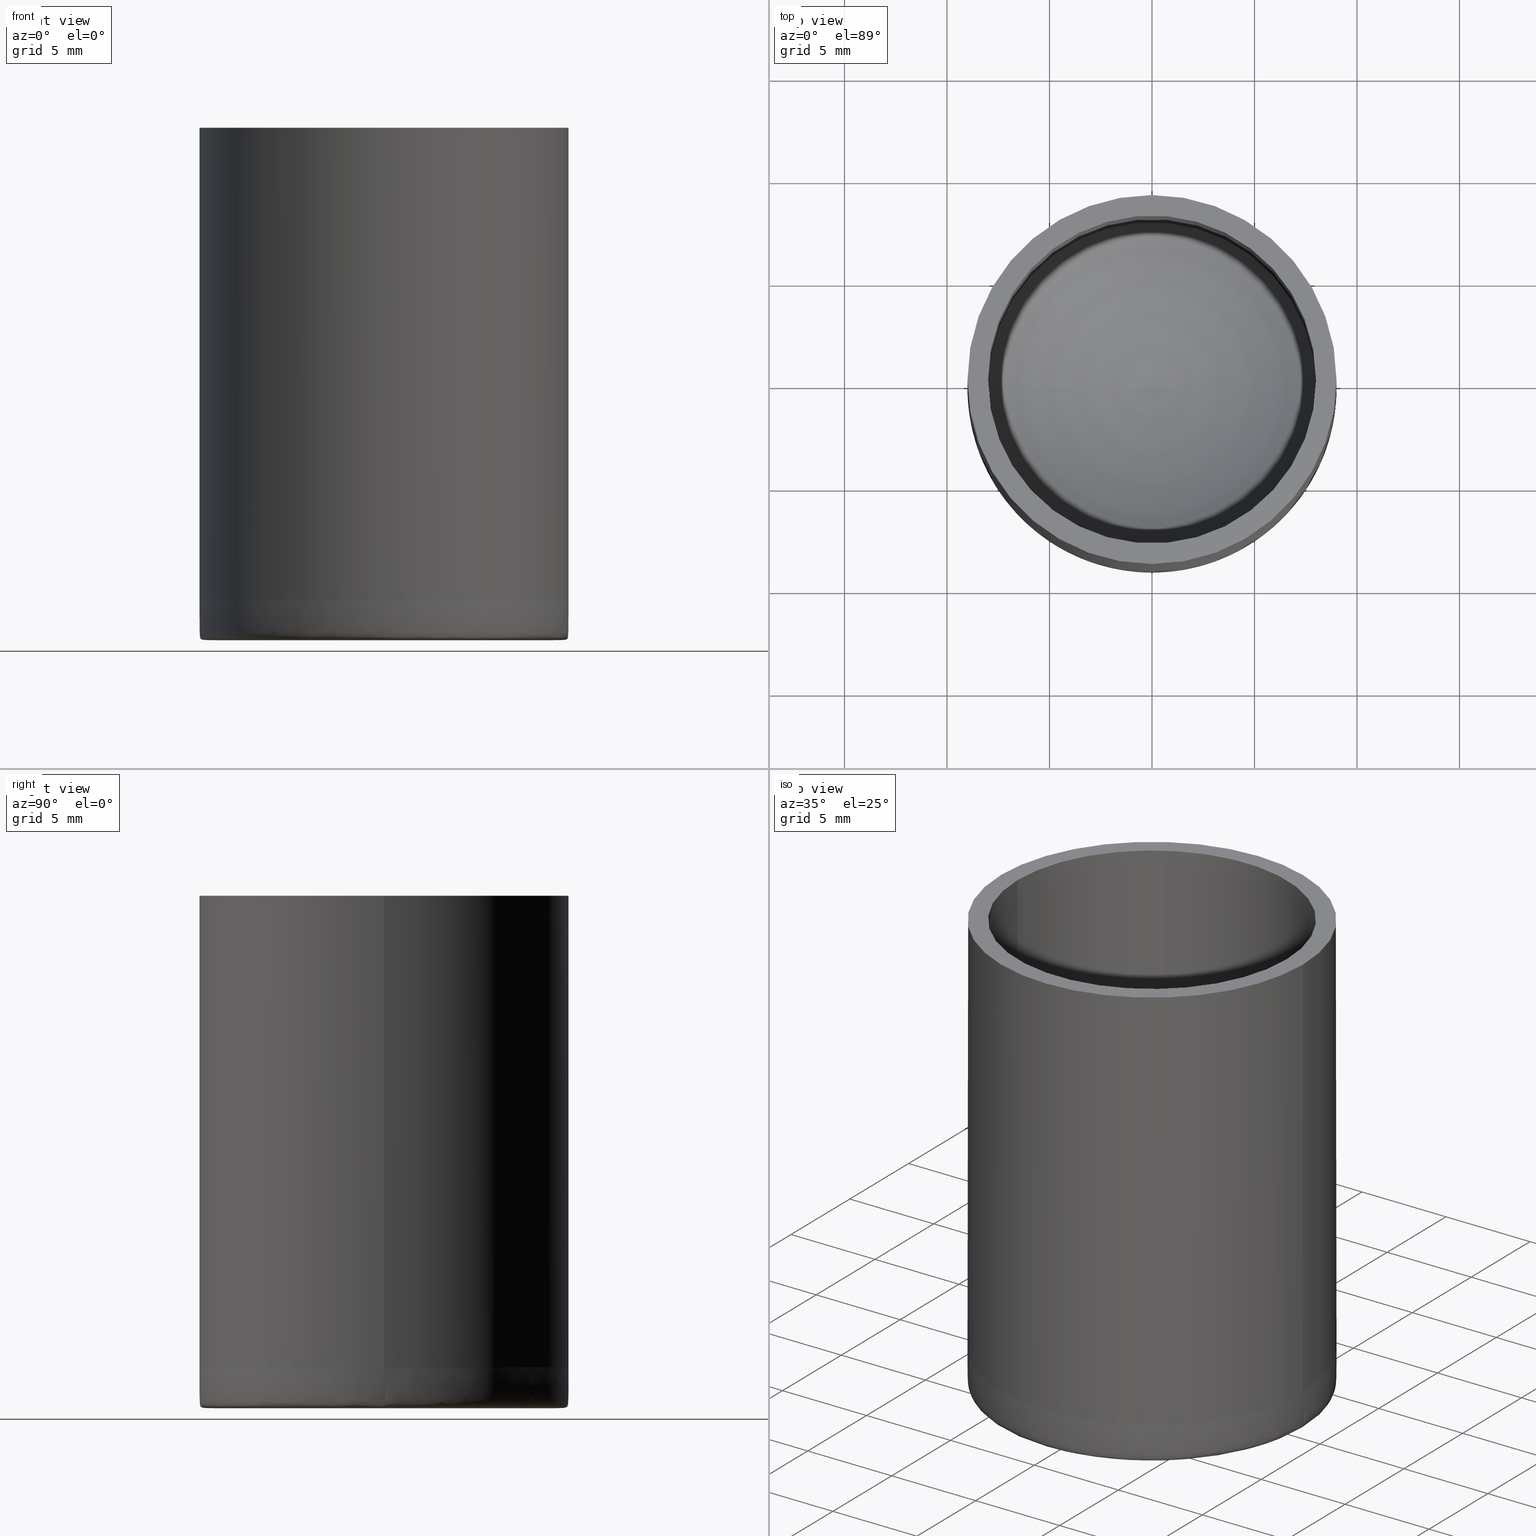
[diagram: canonical four-view strip — front | top / right | iso, engineering-drawing reading convention]
A machine part, canonical four-view strip (front | top / right | iso — engineering-drawing reading convention). The complete STEP part file that produces these views, byte-faithful:
ISO-10303-21;
HEADER;
FILE_DESCRIPTION (( 'STEP AP203' ),
    '1' );
FILE_NAME ('���. KRT631.STEP',
    '2014-06-04T09:23:57',
    ( '' ),
    ( '' ),
    'SwSTEP 2.0',
    'SolidWorks 2014',
    '' );
FILE_SCHEMA (( 'CONFIG_CONTROL_DESIGN' ));
ENDSEC;

DATA;
#1 = CARTESIAN_POINT ( 'NONE',  ( 2.355730962935730600, 8.765754088481333600, 2.000000000000001800 ) ) ;
#2 = CARTESIAN_POINT ( 'NONE',  ( 8.765754088481321200, 2.355730962935762600, 2.000000000000001800 ) ) ;
#3 =( BOUNDED_SURFACE ( )  B_SPLINE_SURFACE ( 2, 3, ( 
 ( #583, #352, #393, #348, #116, #298, #19, #390, #21, #65, #445, #110, #69, #157, #300, #114, #438, #160, #15, #444, #496, #258, #208, #163, #164, #500, #343, #543, #256, #18, #63, #387, #351, #587 ),
 ( #112, #106, #119, #592, #307, #216, #593, #551, #512, #76, #261, #602, #505, #361, #554, #212, #118, #596, #266, #506, #447, #508, #259, #260, #224, #452, #175, #404, #513, #454, #23, #314, #401, #356 ),
 ( #32, #125, #74, #221, #357, #264, #304, #30, #168, #395, #213, #22, #450, #127, #170, #552, #394, #459, #78, #594, #311, #399, #359, #308, #355, #26, #75, #72, #171, #117, #166, #555, #515, #134 ) ),
 .UNSPECIFIED., .F., .T., .T. ) 
 B_SPLINE_SURFACE_WITH_KNOTS ( ( 3, 3 ),
 ( 4, 2, 2, 2, 2, 2, 2, 2, 2, 2, 2, 2, 2, 2, 2, 2, 4 ),
 ( 0.0000000000000000000, 1.000000000000000000 ),
 ( 0.0000000000000000000, 0.3926990816987241400, 0.7853981633974482800, 1.178097245096172400, 1.570796326794896600, 1.963495408493620700, 2.356194490192344800, 2.748893571891069000, 3.141592653589793100, 3.534291735288517300, 3.926990816987241400, 4.319689898685965100, 4.712388980384689700, 5.105088062083414300, 5.497787143782138000, 5.890486225480861600, 6.283185307179586200 ),
 .UNSPECIFIED. ) 
 GEOMETRIC_REPRESENTATION_ITEM ( )  RATIONAL_B_SPLINE_SURFACE ( (
 ( 1.000000000000000000, 1.000000000000000000, 1.000000000000000000, 1.000000000000000000, 1.000000000000000000, 1.000000000000000000, 1.000000000000000000, 1.000000000000000000, 1.000000000000000000, 1.000000000000000000, 1.000000000000000000, 1.000000000000000000, 1.000000000000000000, 1.000000000000000000, 1.000000000000000000, 1.000000000000000000, 1.000000000000000000, 1.000000000000000000, 1.000000000000000000, 1.000000000000000000, 1.000000000000000000, 1.000000000000000000, 1.000000000000000000, 1.000000000000000000, 1.000000000000000000, 1.000000000000000000, 1.000000000000000000, 1.000000000000000000, 1.000000000000000000, 1.000000000000000000, 1.000000000000000000, 1.000000000000000000, 1.000000000000000000, 1.000000000000000000),
 ( 14.14213562373095100, 14.14213562373095100, 14.14213562373095500, 14.14213562373095500, 14.14213562373095100, 14.14213562373095100, 14.14213562373095500, 14.14213562373095500, 14.14213562373095100, 14.14213562373095100, 14.14213562373094900, 14.14213562373094900, 14.14213562373095500, 14.14213562373095500, 14.14213562373094900, 14.14213562373094900, 14.14213562373095100, 14.14213562373095100, 14.14213562373094600, 14.14213562373094600, 14.14213562373095100, 14.14213562373095100, 14.14213562373094900, 14.14213562373094900, 14.14213562373095500, 14.14213562373095500, 14.14213562373095100, 14.14213562373095100, 14.14213562373095500, 14.14213562373095500, 14.14213562373094900, 14.14213562373094900, 14.14213562373095100, 14.14213562373095100),
 ( 1.000000000000000000, 1.000000000000000000, 1.000000000000000000, 1.000000000000000000, 1.000000000000000000, 1.000000000000000000, 1.000000000000000000, 1.000000000000000000, 1.000000000000000000, 1.000000000000000000, 1.000000000000000000, 1.000000000000000000, 1.000000000000000000, 1.000000000000000000, 1.000000000000000000, 1.000000000000000000, 1.000000000000000000, 1.000000000000000000, 1.000000000000000000, 1.000000000000000000, 1.000000000000000000, 1.000000000000000000, 1.000000000000000000, 1.000000000000000000, 1.000000000000000000, 1.000000000000000000, 1.000000000000000000, 1.000000000000000000, 1.000000000000000000, 1.000000000000000000, 1.000000000000000000, 1.000000000000000000, 1.000000000000000000, 1.000000000000000000) ) ) 
 REPRESENTATION_ITEM ( '' )  SURFACE ( )  );
#4 = DIRECTION ( 'NONE',  ( 1.478392893678685000E-017, -0.0000000000000000000, -1.000000000000000000 ) ) ;
#5 = DATE_AND_TIME ( #133, #396 ) ;
#6 = CARTESIAN_POINT ( 'NONE',  ( 4.532570819635861200, -7.864077496722286400, -3.956461275332821500E-013 ) ) ;
#7 = FACE_OUTER_BOUND ( 'NONE', #546, .T. ) ;
#8 = AXIS2_PLACEMENT_3D ( 'NONE', #466, #321, #520 ) ;
#9 = CARTESIAN_POINT ( 'NONE',  ( -2.355730962935641800, 8.765754088481578800, 1.734723475976807300E-015 ) ) ;
#10 = CARTESIAN_POINT ( 'NONE',  ( 1.084202172485504400E-016, 0.0000000000000000000, 16.82171155320563800 ) ) ;
#11 = CARTESIAN_POINT ( 'NONE',  ( 7.864077496721888500, -4.532570819635727100, 2.000000000000001800 ) ) ;
#12 = CARTESIAN_POINT ( 'NONE',  ( 7.864077495188316100, 4.532570823338097900, 2.000000000000001800 ) ) ;
#13 = CARTESIAN_POINT ( 'NONE',  ( -0.9162978541803630300, 6.999999999999999100, 1.734723475976807100E-015 ) ) ;
#14 = EDGE_LOOP ( 'NONE', ( #491, #141 ) ) ;
#15 = CARTESIAN_POINT ( 'NONE',  ( -8.765754088481543200, -2.355730962935216300, 2.000000000000001800 ) ) ;
#16 = CARTESIAN_POINT ( 'NONE',  ( -3.525332859716778800, -6.116504719672661000, 1.734723475976807100E-015 ) ) ;
#17 =( NAMED_UNIT ( * ) PLANE_ANGLE_UNIT ( ) SI_UNIT ( $, .RADIAN. ) );
#18 = CARTESIAN_POINT ( 'NONE',  ( 7.197001578750059600, -5.530920482607799100, 2.000000000000001800 ) ) ;
#19 = CARTESIAN_POINT ( 'NONE',  ( 4.532570819635877200, 7.864077496721830800, 2.000000000000001800 ) ) ;
#20 = ORIENTED_EDGE ( 'NONE', *, *, #24, .T. ) ;
#21 = CARTESIAN_POINT ( 'NONE',  ( 1.178097241089039600, 9.000000000000000000, 2.000000000000001800 ) ) ;
#22 = CARTESIAN_POINT ( 'NONE',  ( -3.525332859716895600, 6.116504719672516200, 1.734723475976807100E-015 ) ) ;
#23 = CARTESIAN_POINT ( 'NONE',  ( 7.864077496722276600, -4.532570819635886900, 1.734723475976807300E-015 ) ) ;
#24 = EDGE_CURVE ( 'NONE', #503, #476, #440, .T. ) ;
#25 = FACE_OUTER_BOUND ( 'NONE', #262, .T. ) ;
#26 = CARTESIAN_POINT ( 'NONE',  ( 0.9162978541803755700, -6.999999999999999100, 1.734723475976807100E-015 ) ) ;
#27 = ORIENTED_EDGE ( 'NONE', *, *, #553, .F. ) ;
#28 = CARTESIAN_POINT ( 'NONE',  ( 5.273456898050755000, 4.626093170442653800, -0.0000000000000000000 ) ) ;
#29 = EDGE_CURVE ( 'NONE', #332, #120, #582, .T. ) ;
#30 = CARTESIAN_POINT ( 'NONE',  ( 1.832235193394360100, 6.817808735485497700, 1.734723475976807100E-015 ) ) ;
#31 = CARTESIAN_POINT ( 'NONE',  ( 7.000000000000000900, 0.4583463344911470900, -0.0000000000000000000 ) ) ;
#32 = CARTESIAN_POINT ( 'NONE',  ( 6.999999999999999100, 0.0000000000000000000, 1.734723475976807100E-015 ) ) ;
#33 = DIRECTION ( 'NONE',  ( 1.000000000000000000, 0.0000000000000000000, -0.0000000000000000000 ) ) ;
#34 = DIRECTION ( 'NONE',  ( 1.000000000000000000, 0.0000000000000000000, -0.0000000000000000000 ) ) ;
#35 = TOROIDAL_SURFACE ( 'NONE', #362, -0.6206418324521124600, 13.83563900021273500 ) ;
#36 = CARTESIAN_POINT ( 'NONE',  ( -9.000000000000000000, 1.103971260012029000E-015, 1.734723475976807300E-015 ) ) ;
#37 = CARTESIAN_POINT ( 'NONE',  ( 6.954909725996230900, -0.9137101841437300600, 0.0000000000000000000 ) ) ;
#38 = CARTESIAN_POINT ( 'NONE',  ( 6.955024288918110600, 0.9135289665447016100, -0.0000000000000000000 ) ) ;
#39 = AXIS2_PLACEMENT_3D ( 'NONE', #66, #111, #162 ) ;
#40 = CARTESIAN_POINT ( 'NONE',  ( -6.999999999999999100, 8.673617379884035500E-016, 8.673617379884035500E-016 ) ) ;
#41 = CARTESIAN_POINT ( 'NONE',  ( 4.626093170439671300, -5.273456898053740200, -0.0000000000000000000 ) ) ;
#42 = CARTESIAN_POINT ( 'NONE',  ( 3.230422529338457500E-016, 0.0000000000000000000, 6.000000000000003600 ) ) ;
#43 = MANIFOLD_SOLID_BREP ( '����������1', #276 ) ;
#44 = CARTESIAN_POINT ( 'NONE',  ( 1.178097241089039600, 9.000000000000000000, 2.000000000000001800 ) ) ;
#45 = CARTESIAN_POINT ( 'NONE',  ( 3.230422529338457500E-016, 0.0000000000000000000, 6.000000000000003600 ) ) ;
#46 = PERSON_AND_ORGANIZATION ( #516, #556 ) ;
#47 = EDGE_LOOP ( 'NONE', ( #305, #206, #569, #600 ) ) ;
#48 = CARTESIAN_POINT ( 'NONE',  ( 9.000000000000000000, 0.0000000000000000000, 1.734723475976807300E-015 ) ) ;
#49 = AXIS2_PLACEMENT_3D ( 'NONE', #318, #174, #33 ) ;
#50 = CARTESIAN_POINT ( 'NONE',  ( 5.530920479774233700, 7.197001581583620600, 2.000000000000001800 ) ) ;
#51 = CARTESIAN_POINT ( 'NONE',  ( -6.291945348562289400, -3.101679843626973000, 0.0000000000000000000 ) ) ;
#52 = FACE_OUTER_BOUND ( 'NONE', #329, .T. ) ;
#53 = ADVANCED_FACE ( 'NONE', ( #517 ), #449, .T. ) ;
#54 = DIRECTION ( 'NONE',  ( -1.000000000000000000, 0.0000000000000000000, 0.0000000000000000000 ) ) ;
#55 = ORIENTED_EDGE ( 'NONE', *, *, #436, .F. ) ;
#56 = CARTESIAN_POINT ( 'NONE',  ( 5.530920482607561100, -7.197001578749894400, 1.734723475976806900E-015 ) ) ;
#57 = CARTESIAN_POINT ( 'NONE',  ( 6.999999999999999100, 0.0000000000000000000, 8.673617379884035500E-016 ) ) ;
#58 = CARTESIAN_POINT ( 'NONE',  ( 1.178097241089039600, 8.999999999999998200, 1.734723475976807300E-015 ) ) ;
#59 = DIRECTION ( 'NONE',  ( -0.0000000000000000000, -1.000000000000000000, 0.0000000000000000000 ) ) ;
#60 = CARTESIAN_POINT ( 'NONE',  ( -7.864077496720089000, -4.532570819636464200, -3.956461275345179200E-013 ) ) ;
#61 = AXIS2_PLACEMENT_3D ( 'NONE', #369, #472, #86 ) ;
#62 = APPROVAL_ROLE ( '' ) ;
#63 = CARTESIAN_POINT ( 'NONE',  ( 7.864077496721888500, -4.532570819635727100, 2.000000000000001800 ) ) ;
#64 = PERSON_AND_ORGANIZATION_ROLE ( 'design_supplier' ) ;
#65 = CARTESIAN_POINT ( 'NONE',  ( -1.178097241089038200, 9.000000000000000000, 2.000000000000001800 ) ) ;
#66 = CARTESIAN_POINT ( 'NONE',  ( 0.0000000000000000000, 0.0000000000000000000, 0.0000000000000000000 ) ) ;
#67 = VERTEX_POINT ( 'NONE', #365 ) ;
#68 = DATE_AND_TIME ( #189, #467 ) ;
#69 = CARTESIAN_POINT ( 'NONE',  ( -5.530920482607776900, 7.197001578750081000, 2.000000000000001800 ) ) ;
#70 = CARTESIAN_POINT ( 'NONE',  ( 6.817808735485742000, -1.832235193394495600, 1.734723475976807100E-015 ) ) ;
#71 = PRODUCT_DEFINITION ( 'UNKNOWN', '', #279, #281 ) ;
#72 = CARTESIAN_POINT ( 'NONE',  ( 3.525332859716758800, -6.116504719672669000, 1.734723475976807100E-015 ) ) ;
#73 = PERSON_AND_ORGANIZATION ( #516, #556 ) ;
#74 = CARTESIAN_POINT ( 'NONE',  ( 6.817808735485234800, 1.832235193394431600, 1.734723475976807100E-015 ) ) ;
#75 = CARTESIAN_POINT ( 'NONE',  ( 1.832235193394475200, -6.817808735485352000, 1.734723475976807100E-015 ) ) ;
#76 = CARTESIAN_POINT ( 'NONE',  ( -1.178097241089038200, 8.999999999999998200, 1.734723475976807300E-015 ) ) ;
#77 = APPROVAL_PERSON_ORGANIZATION ( #46, #99, #159 ) ;
#78 = CARTESIAN_POINT ( 'NONE',  ( -6.817808735485646900, -1.832235193394427900, 1.734723475976807100E-015 ) ) ;
#79 = ORIENTED_EDGE ( 'NONE', *, *, #473, .T. ) ;
#80 = CARTESIAN_POINT ( 'NONE',  ( -5.273401766169546300, 4.626038038560709600, 0.0000000000000000000 ) ) ;
#81 = CARTESIAN_POINT ( 'NONE',  ( 6.075836996854586200, -3.505686863512972500, 0.0000000000000000000 ) ) ;
#82 = CARTESIAN_POINT ( 'NONE',  ( 9.000000000000000000, 5.510910596163088600E-016, 2.000000000000001800 ) ) ;
#83 = DIRECTION ( 'NONE',  ( -1.000000000000000000, 0.0000000000000000000, 0.0000000000000000000 ) ) ;
#84 = DIRECTION ( 'NONE',  ( -1.000000000000000000, 0.0000000000000000000, -1.478392893678685000E-017 ) ) ;
#85 = DATE_AND_TIME ( #211, #286 ) ;
#86 = DIRECTION ( 'NONE',  ( -1.000000000000000000, 0.0000000000000000000, 0.0000000000000000000 ) ) ;
#87 = CARTESIAN_POINT ( 'NONE',  ( -9.000000000000000000, 1.178097241089039800, 2.000000000000001800 ) ) ;
#88 = CARTESIAN_POINT ( 'NONE',  ( -1.178097245096173100, -9.000000000000000000, 2.000000000000001800 ) ) ;
#89 = CARTESIAN_POINT ( 'NONE',  ( -7.197001578750478000, -5.530920482607379000, 2.000000000000001800 ) ) ;
#90 = CARTESIAN_POINT ( 'NONE',  ( -4.532570823338096100, -7.864077495188321400, 2.000000000000001800 ) ) ;
#91 = ORIENTED_EDGE ( 'NONE', *, *, #553, .T. ) ;
#92 = CARTESIAN_POINT ( 'NONE',  ( -8.999999999999998200, 1.178097245096171100, 2.000000000000001800 ) ) ;
#93 = ADVANCED_FACE ( 'NONE', ( #7 ), #3, .T. ) ;
#94 = CARTESIAN_POINT ( 'NONE',  ( 7.197001578749834000, 5.530920482608019400, 2.000000000000001800 ) ) ;
#95 = CARTESIAN_POINT ( 'NONE',  ( -1.832235193394365500, 6.817808735485495000, 1.734723475976807100E-015 ) ) ;
#96 = ADVANCED_FACE ( 'NONE', ( #270, #148 ), #227, .T. ) ;
#97 = CARTESIAN_POINT ( 'NONE',  ( 8.000000000000001800, 9.797174393178827600E-016, 6.000000000000003600 ) ) ;
#98 = CARTESIAN_POINT ( 'NONE',  ( 7.197001578750258600, -5.530920482607994500, 1.734723475976806900E-015 ) ) ;
#99 = APPROVAL ( #544, 'UNSPECIFIED' ) ;
#100 = DIRECTION ( 'NONE',  ( 1.478392893678685000E-017, -0.0000000000000000000, -1.000000000000000000 ) ) ;
#101 = LINE ( 'NONE', #470, #277 ) ;
#102 = CARTESIAN_POINT ( 'NONE',  ( 9.000000000000000000, 0.0000000000000000000, 2.000000000000001800 ) ) ;
#103 = DIRECTION ( 'NONE',  ( 0.0000000000000000000, 0.0000000000000000000, -1.000000000000000000 ) ) ;
#104 = CARTESIAN_POINT ( 'NONE',  ( 6.999999999999999100, 0.9162978541821159600, 1.734723475976807100E-015 ) ) ;
#105 = CARTESIAN_POINT ( 'NONE',  ( -1.178097241089025800, -9.000000000000001800, 2.000000000000001800 ) ) ;
#106 = CARTESIAN_POINT ( 'NONE',  ( 8.999999999999998200, 1.178097241091292000, 1.734723475976807300E-015 ) ) ;
#107 = CIRCLE ( 'NONE', #588, 8.000000000000000000 ) ;
#108 = EDGE_LOOP ( 'NONE', ( #55, #79, #191, #526 ) ) ;
#109 = DATE_TIME_ROLE ( 'creation_date' ) ;
#110 = CARTESIAN_POINT ( 'NONE',  ( -4.532570819636053000, 7.864077496721756200, 2.000000000000001800 ) ) ;
#111 = DIRECTION ( 'NONE',  ( 0.0000000000000000000, 0.0000000000000000000, 1.000000000000000000 ) ) ;
#112 = CARTESIAN_POINT ( 'NONE',  ( 8.999999999999998200, 0.0000000000000000000, 1.734723475976807300E-015 ) ) ;
#113 = PERSON_AND_ORGANIZATION_ROLE ( 'creator' ) ;
#114 = CARTESIAN_POINT ( 'NONE',  ( -8.765754088481420700, 2.355730962935523200, 2.000000000000001800 ) ) ;
#115 = EDGE_LOOP ( 'NONE', ( #347, #558 ) ) ;
#116 = CARTESIAN_POINT ( 'NONE',  ( 7.197001578749834000, 5.530920482608019400, 2.000000000000001800 ) ) ;
#117 = CARTESIAN_POINT ( 'NONE',  ( 5.597667894583356200, -4.301827042028308200, 1.734723475976807100E-015 ) ) ;
#118 = CARTESIAN_POINT ( 'NONE',  ( -8.999999999999998200, 1.178097241089039800, 1.734723475976807300E-015 ) ) ;
#119 = CARTESIAN_POINT ( 'NONE',  ( 8.765754088480962400, 2.355730962935613300, 1.734723475976806900E-015 ) ) ;
#120 = VERTEX_POINT ( 'NONE', #136 ) ;
#121 = APPROVAL_PERSON_ORGANIZATION ( #545, #165, #209 ) ;
#122 = VERTEX_POINT ( 'NONE', #82 ) ;
#123 = CARTESIAN_POINT ( 'NONE',  ( 6.075901012625232400, 3.505729637477756900, -0.0000000000000000000 ) ) ;
#124 = EDGE_CURVE ( 'NONE', #371, #455, #169, .T. ) ;
#125 = CARTESIAN_POINT ( 'NONE',  ( 6.999999999999999100, 0.9162978541821159600, 1.734723475976807100E-015 ) ) ;
#126 = DIRECTION ( 'NONE',  ( 1.000000000000000000, 0.0000000000000000000, 0.0000000000000000000 ) ) ;
#127 = CARTESIAN_POINT ( 'NONE',  ( -5.597667894583401500, 4.301827042028262900, 1.734723475976807100E-015 ) ) ;
#128 = CARTESIAN_POINT ( 'NONE',  ( 1.817370587955756200, -6.775160495766284500, 0.0000000000000000000 ) ) ;
#129 = CARTESIAN_POINT ( 'NONE',  ( 4.626038038560912100, 5.273401766169008900, 0.0000000000000000000 ) ) ;
#130 = CARTESIAN_POINT ( 'NONE',  ( -4.626093170442124400, 5.273456898050948600, -0.0000000000000000000 ) ) ;
#131 = CARTESIAN_POINT ( 'NONE',  ( 4.271773162550204900, -5.563954497036533600, 0.0000000000000000000 ) ) ;
#132 = CARTESIAN_POINT ( 'NONE',  ( -0.4577552816898854400, 6.999961015872925100, 0.0000000000000000000 ) ) ;
#133 = CALENDAR_DATE ( 2014, 4, 6 ) ;
#134 = CARTESIAN_POINT ( 'NONE',  ( 6.999999999999999100, 0.0000000000000000000, 1.734723475976807100E-015 ) ) ;
#135 = CARTESIAN_POINT ( 'NONE',  ( 6.642296073321877400, -2.255858372325521900, 0.0000000000000000000 ) ) ;
#136 = CARTESIAN_POINT ( 'NONE',  ( -6.999999999999999100, 8.673617379884035500E-016, 8.673617379884035500E-016 ) ) ;
#137 = CARTESIAN_POINT ( 'NONE',  ( 7.197001581583623200, -5.530920479774233700, 2.000000000000002200 ) ) ;
#138 = CARTESIAN_POINT ( 'NONE',  ( -8.765754088481543200, -2.355730962935216300, 2.000000000000001800 ) ) ;
#139 = EDGE_LOOP ( 'NONE', ( #354, #386, #590, #494 ) ) ;
#140 = CARTESIAN_POINT ( 'NONE',  ( 9.000000000000000000, -1.178097245096174200, 2.000000000000001800 ) ) ;
#141 = ORIENTED_EDGE ( 'NONE', *, *, #436, .T. ) ;
#142 = CARTESIAN_POINT ( 'NONE',  ( 4.532570819635877200, 7.864077496721830800, 2.000000000000001800 ) ) ;
#143 = AXIS2_PLACEMENT_3D ( 'NONE', #573, #4, #54 ) ;
#144 = CARTESIAN_POINT ( 'NONE',  ( -5.273456898050898900, -4.626093170442176800, -0.0000000000000000000 ) ) ;
#145 = CARTESIAN_POINT ( 'NONE',  ( -1.178097241089038200, 9.000000000000000000, 2.000000000000001800 ) ) ;
#146 = CARTESIAN_POINT ( 'NONE',  ( 2.355730959233521400, 8.765754090014837600, 2.000000000000001300 ) ) ;
#147 = CARTESIAN_POINT ( 'NONE',  ( 8.765754088480871800, -2.355730962935751900, 1.734723475976807300E-015 ) ) ;
#148 = FACE_BOUND ( 'NONE', #115, .T. ) ;
#149 = CARTESIAN_POINT ( 'NONE',  ( 6.817808735485234800, 1.832235193394431600, 1.734723475976807100E-015 ) ) ;
#150 = ADVANCED_FACE ( 'NONE', ( #398 ), #35, .F. ) ;
#151 = CC_DESIGN_PERSON_AND_ORGANIZATION_ASSIGNMENT ( #323, #113, ( #279 ) ) ;
#152 = CARTESIAN_POINT ( 'NONE',  ( 4.532570819635577800, 7.864077496722377000, 7.964964254957309400E-013 ) ) ;
#153 = CARTESIAN_POINT ( 'NONE',  ( 8.765754088481260800, -2.355730962935912200, 2.000000000000001800 ) ) ;
#154 = LOCAL_TIME ( 15, 23, 57.00000000000000000, #306 ) ;
#155 = CIRCLE ( 'NONE', #510, 9.000000000000000000 ) ;
#156 = CARTESIAN_POINT ( 'NONE',  ( -7.864077496721667300, 4.532570819636290200, 1.734723475976807300E-015 ) ) ;
#157 = CARTESIAN_POINT ( 'NONE',  ( -7.197001578750087200, 5.530920482607766300, 2.000000000000001800 ) ) ;
#158 = EDGE_CURVE ( 'NONE', #455, #120, #372, .T. ) ;
#159 = APPROVAL_ROLE ( '' ) ;
#160 = CARTESIAN_POINT ( 'NONE',  ( -9.000000000000000000, -1.178097241089037600, 2.000000000000001800 ) ) ;
#161 = VERTEX_POINT ( 'NONE', #407 ) ;
#162 = DIRECTION ( 'NONE',  ( 1.000000000000000000, 0.0000000000000000000, 0.0000000000000000000 ) ) ;
#163 = CARTESIAN_POINT ( 'NONE',  ( -2.355730962936081400, -8.765754088481189800, 2.000000000000001800 ) ) ;
#164 = CARTESIAN_POINT ( 'NONE',  ( -1.178097241089025800, -9.000000000000001800, 2.000000000000001800 ) ) ;
#165 = APPROVAL ( #497, 'UNSPECIFIED' ) ;
#166 = CARTESIAN_POINT ( 'NONE',  ( 6.116504719672263900, -3.525332859716779700, 1.734723475976807100E-015 ) ) ;
#167 = SHAPE_DEFINITION_REPRESENTATION ( #414, #353 ) ;
#168 = CARTESIAN_POINT ( 'NONE',  ( 0.9162978541803639100, 6.999999999999999100, 1.734723475976807100E-015 ) ) ;
#169 = LINE ( 'NONE', #273, #533 ) ;
#170 = CARTESIAN_POINT ( 'NONE',  ( -6.116504719672365200, 3.525332859717026100, 1.734723475976807100E-015 ) ) ;
#171 = CARTESIAN_POINT ( 'NONE',  ( 4.301827042028279800, -5.597667894583384700, 1.734723475976807100E-015 ) ) ;
#172 = EDGE_CURVE ( 'NONE', #120, #332, #288, .T. ) ;
#173 = CARTESIAN_POINT ( 'NONE',  ( 6.999999999999999100, 0.0000000000000000000, 8.673617379884035500E-016 ) ) ;
#174 = DIRECTION ( 'NONE',  ( 0.0000000000000000000, 0.0000000000000000000, 1.000000000000000000 ) ) ;
#175 = CARTESIAN_POINT ( 'NONE',  ( 2.355730962935725700, -8.765754088480882400, 3.991155744852366200E-013 ) ) ;
#176 = CARTESIAN_POINT ( 'NONE',  ( 0.4577552816897402200, -6.999961015872926900, 0.0000000000000000000 ) ) ;
#177 = ORIENTED_EDGE ( 'NONE', *, *, #416, .F. ) ;
#178 = B_SPLINE_CURVE_WITH_KNOTS ( 'NONE', 3,
 ( #615, #325, #579, #12, #194, #50, #374, #146, #487, #481, #248, #190, #376, #484, #572, #576, #92, #532 ),
 .UNSPECIFIED., .F., .F.,
 ( 4, 2, 2, 2, 2, 2, 2, 2, 4 ),
 ( 0.0000000000000000000, 0.06250000000000005600, 0.1250000000000001100, 0.1875000000000001100, 0.2500000000000001100, 0.3125000000000001100, 0.3750000000000001100, 0.4375000000000000600, 0.5000000000000000000 ),
 .UNSPECIFIED. ) ;
#179 = CARTESIAN_POINT ( 'NONE',  ( -0.6206418324521123500, -7.600670335294274300E-017, 16.82171155320563800 ) ) ;
#180 = CARTESIAN_POINT ( 'NONE',  ( -8.765754090014841200, -2.355730959233521800, 2.000000000000002200 ) ) ;
#181 = CC_DESIGN_PERSON_AND_ORGANIZATION_ASSIGNMENT ( #431, #581, ( #328 ) ) ;
#182 = CARTESIAN_POINT ( 'NONE',  ( 7.000000000000000900, -0.4579513537572051900, -0.0000000000000000000 ) ) ;
#183 = DIRECTION ( 'NONE',  ( 1.478392893678685000E-017, -0.0000000000000000000, -1.000000000000000000 ) ) ;
#184 = FACE_OUTER_BOUND ( 'NONE', #108, .T. ) ;
#185 = CC_DESIGN_DATE_AND_TIME_ASSIGNMENT ( #68, #109, ( #71 ) ) ;
#186 = CARTESIAN_POINT ( 'NONE',  ( 9.000000000000000000, 1.178097241091291800, 2.000000000000001800 ) ) ;
#187 = DIRECTION ( 'NONE',  ( 1.000000000000000000, 0.0000000000000000000, 0.0000000000000000000 ) ) ;
#188 = ORIENTED_EDGE ( 'NONE', *, *, #29, .T. ) ;
#189 = CALENDAR_DATE ( 2014, 4, 6 ) ;
#190 = CARTESIAN_POINT ( 'NONE',  ( -4.532570823338096100, 7.864077495188319700, 2.000000000000001300 ) ) ;
#191 = ORIENTED_EDGE ( 'NONE', *, *, #451, .T. ) ;
#192 = CARTESIAN_POINT ( 'NONE',  ( -8.765754088481420700, 2.355730962935523200, 2.000000000000001800 ) ) ;
#193 = ADVANCED_FACE ( 'NONE', ( #184 ), #315, .T. ) ;
#194 = CARTESIAN_POINT ( 'NONE',  ( 7.197001581583618800, 5.530920479774234600, 2.000000000000001800 ) ) ;
#195 = PRODUCT_RELATED_PRODUCT_CATEGORY ( 'detail', '', ( #425 ) ) ;
#196 = CARTESIAN_POINT ( 'NONE',  ( -9.000000000000000000, 5.421010862427522200E-016, 2.000000000000001800 ) ) ;
#197 = ADVANCED_FACE ( 'NONE', ( #52 ), #511, .F. ) ;
#198 = AXIS2_PLACEMENT_3D ( 'NONE', #560, #465, #317 ) ;
#199 = CARTESIAN_POINT ( 'NONE',  ( 8.999999999999998200, 0.0000000000000000000, 1.734723475976807300E-015 ) ) ;
#200 = FACE_OUTER_BOUND ( 'NONE', #253, .T. ) ;
#201 = CARTESIAN_POINT ( 'NONE',  ( 5.597667894583292300, 4.301827042028371300, 1.734723475976807100E-015 ) ) ;
#202 = CARTESIAN_POINT ( 'NONE',  ( -4.532570819635886000, -7.864077496722276600, 1.734723475976807300E-015 ) ) ;
#203 = DATE_TIME_ROLE ( 'classification_date' ) ;
#204 = CARTESIAN_POINT ( 'NONE',  ( 6.116504719672263900, -3.525332859716779700, 1.734723475976807100E-015 ) ) ;
#205 = EDGE_CURVE ( 'NONE', #161, #218, #107, .T. ) ;
#206 = ORIENTED_EDGE ( 'NONE', *, *, #158, .T. ) ;
#207 = ORIENTED_EDGE ( 'NONE', *, *, #382, .T. ) ;
#208 = CARTESIAN_POINT ( 'NONE',  ( -4.532570819635557400, -7.864077496721959500, 2.000000000000001800 ) ) ;
#209 = APPROVAL_ROLE ( '' ) ;
#210 = CARTESIAN_POINT ( 'NONE',  ( -6.999999999999999100, 0.9162978541803642500, 1.734723475976807100E-015 ) ) ;
#211 = CALENDAR_DATE ( 2014, 4, 6 ) ;
#212 = CARTESIAN_POINT ( 'NONE',  ( -8.765754088481482900, 2.355730962935348200, 1.734723475976807300E-015 ) ) ;
#213 = CARTESIAN_POINT ( 'NONE',  ( -1.832235193394365500, 6.817808735485495000, 1.734723475976807100E-015 ) ) ;
#214 = AXIS2_PLACEMENT_3D ( 'NONE', #179, #271, #411 ) ;
#215 = CARTESIAN_POINT ( 'NONE',  ( 0.0000000000000000000, 0.0000000000000000000, 25.00000000000000000 ) ) ;
#216 = CARTESIAN_POINT ( 'NONE',  ( 5.530920482608021200, 7.197001578749834000, 1.734723475976807300E-015 ) ) ;
#217 = CARTESIAN_POINT ( 'NONE',  ( 1.817385608177650700, 6.775236007512286400, -0.0000000000000000000 ) ) ;
#218 = VERTEX_POINT ( 'NONE', #226 ) ;
#219 = CYLINDRICAL_SURFACE ( 'NONE', #143, 8.000000000000000000 ) ;
#220 = EDGE_CURVE ( 'NONE', #371, #613, #385, .T. ) ;
#221 = CARTESIAN_POINT ( 'NONE',  ( 6.116504719672778200, 3.525332859716825400, 1.734723475976807100E-015 ) ) ;
#222 = ORIENTED_EDGE ( 'NONE', *, *, #451, .F. ) ;
#223 = CARTESIAN_POINT ( 'NONE',  ( 0.0000000000000000000, 0.0000000000000000000, 25.00000000000000000 ) ) ;
#224 = CARTESIAN_POINT ( 'NONE',  ( -1.178097241089026200, -8.999999999999998200, 1.734723475976806900E-015 ) ) ;
#225 = CARTESIAN_POINT ( 'NONE',  ( -0.4577552816897177400, -7.000038984127072300, -0.0000000000000000000 ) ) ;
#226 = CARTESIAN_POINT ( 'NONE',  ( -8.000000000000000000, 0.0000000000000000000, 25.00000000000000000 ) ) ;
#227 = PLANE ( 'NONE',  #502 ) ;
#228 = CARTESIAN_POINT ( 'NONE',  ( 6.642368106597753100, 2.255888209478373000, -0.0000000000000000000 ) ) ;
#229 = CARTESIAN_POINT ( 'NONE',  ( 1.084202172485504400E-016, 0.0000000000000000000, 16.82171155320563800 ) ) ;
#230 = CARTESIAN_POINT ( 'NONE',  ( 5.273401766171966500, -4.626038038557955400, 0.0000000000000000000 ) ) ;
#231 = CARTESIAN_POINT ( 'NONE',  ( -7.000038984127071400, 0.4577552816867011500, -0.0000000000000000000 ) ) ;
#232 = CARTESIAN_POINT ( 'NONE',  ( 9.000000000000000000, 5.510910596163088600E-016, 2.000000000000001800 ) ) ;
#233 = CARTESIAN_POINT ( 'NONE',  ( -2.355730959233523200, -8.765754090014834100, 2.000000000000001300 ) ) ;
#234 = CC_DESIGN_APPROVAL ( #485, ( #328 ) ) ;
#235 = DIRECTION ( 'NONE',  ( 1.478392893678685000E-017, -0.0000000000000000000, -1.000000000000000000 ) ) ;
#236 = ORIENTED_EDGE ( 'NONE', *, *, #297, .F. ) ;
#237 = COORDINATED_UNIVERSAL_TIME_OFFSET ( 6, 0, .AHEAD. ) ;
#238 = CARTESIAN_POINT ( 'NONE',  ( -6.075901012624056500, -3.505729637479546600, -0.0000000000000000000 ) ) ;
#239 = ORIENTED_EDGE ( 'NONE', *, *, #349, .T. ) ;
#240 = CARTESIAN_POINT ( 'NONE',  ( 0.0000000000000000000, 0.0000000000000000000, 25.00000000000000000 ) ) ;
#241 = AXIS2_PLACEMENT_3D ( 'NONE', #10, #100, #383 ) ;
#242 = DIRECTION ( 'NONE',  ( -0.0000000000000000000, -0.0000000000000000000, -1.000000000000000000 ) ) ;
#243 = ADVANCED_FACE ( 'NONE', ( #446 ), #397, .T. ) ;
#244 = CARTESIAN_POINT ( 'NONE',  ( -5.530920482607776900, 7.197001578750081000, 2.000000000000001800 ) ) ;
#245 = CARTESIAN_POINT ( 'NONE',  ( 8.765754088480962400, 2.355730962935613300, 1.734723475976806900E-015 ) ) ;
#246 = ORIENTED_EDGE ( 'NONE', *, *, #297, .T. ) ;
#247 = CARTESIAN_POINT ( 'NONE',  ( 5.530920482608021200, 7.197001578749834000, 1.734723475976807300E-015 ) ) ;
#248 = CARTESIAN_POINT ( 'NONE',  ( -2.355730959233523600, 8.765754090014837600, 2.000000000000001800 ) ) ;
#249 = CARTESIAN_POINT ( 'NONE',  ( -8.765754088481482900, 2.355730962935348200, 1.734723475976807300E-015 ) ) ;
#250 = CARTESIAN_POINT ( 'NONE',  ( 3.525332859716890700, 6.116504719672518900, 1.734723475976807100E-015 ) ) ;
#251 = CARTESIAN_POINT ( 'NONE',  ( 2.355730962936054300, -8.765754088481196900, 2.000000000000001800 ) ) ;
#252 = CIRCLE ( 'NONE', #422, 8.000000000000001800 ) ;
#253 = EDGE_LOOP ( 'NONE', ( #177, #20, #27 ) ) ;
#254 =( LENGTH_UNIT ( ) NAMED_UNIT ( * ) SI_UNIT ( .MILLI., .METRE. ) );
#255 = CARTESIAN_POINT ( 'NONE',  ( 0.9162978541803755700, -6.999999999999999100, 1.734723475976807100E-015 ) ) ;
#256 = CARTESIAN_POINT ( 'NONE',  ( 5.530920482607757400, -7.197001578750090700, 2.000000000000001800 ) ) ;
#257 = CARTESIAN_POINT ( 'NONE',  ( -1.832235193394495100, -6.817808735485344100, 1.734723475976807100E-015 ) ) ;
#258 = CARTESIAN_POINT ( 'NONE',  ( -5.530920482607371000, -7.197001578750484200, 2.000000000000001800 ) ) ;
#259 = CARTESIAN_POINT ( 'NONE',  ( -4.532570819635886000, -7.864077496722276600, 1.734723475976807300E-015 ) ) ;
#260 = CARTESIAN_POINT ( 'NONE',  ( -2.355730962935751500, -8.765754088480871800, 1.734723475976807300E-015 ) ) ;
#261 = CARTESIAN_POINT ( 'NONE',  ( -2.355730962935641800, 8.765754088481578800, 1.734723475976807300E-015 ) ) ;
#262 = EDGE_LOOP ( 'NONE', ( #299, #316, #207, #246 ) ) ;
#263 = CARTESIAN_POINT ( 'NONE',  ( -3.101679843625301000, 6.291945348562983000, 0.0000000000000000000 ) ) ;
#264 = CARTESIAN_POINT ( 'NONE',  ( 4.301827042028372200, 5.597667894583291400, 1.734723475976807100E-015 ) ) ;
#265 = CARTESIAN_POINT ( 'NONE',  ( -1.817370587953826900, 6.775160495766372500, 0.0000000000000000000 ) ) ;
#266 = CARTESIAN_POINT ( 'NONE',  ( -8.765754088483079800, -2.355730962935127100, 3.991155744864715300E-013 ) ) ;
#267 = B_SPLINE_CURVE_WITH_KNOTS ( 'NONE', 3,
 ( #412, #529, #180, #468, #527, #562, #90, #233, #88, #568, #410, #283, #611, #137, #608, #417, #140, #327 ),
 .UNSPECIFIED., .F., .F.,
 ( 4, 2, 2, 2, 2, 2, 2, 2, 4 ),
 ( 0.5000000000000000000, 0.5625000000000000000, 0.6249999999999998900, 0.6874999999999998900, 0.7499999999999998900, 0.8124999999999998900, 0.8749999999999998900, 0.9375000000000000000, 1.000000000000000000 ),
 .UNSPECIFIED. ) ;
#268 = CARTESIAN_POINT ( 'NONE',  ( -9.000000000000000000, 5.421010862427522200E-016, 2.000000000000001800 ) ) ;
#269 = CARTESIAN_POINT ( 'NONE',  ( 6.775121444590564800, 1.817566825776616900, 0.0000000000000000000 ) ) ;
#270 = FACE_OUTER_BOUND ( 'NONE', #14, .T. ) ;
#271 = DIRECTION ( 'NONE',  ( -1.224646799147353200E-016, 1.000000000000000000, -1.810509125125795000E-033 ) ) ;
#272 = CARTESIAN_POINT ( 'NONE',  ( -3.505729637479674500, 6.075901012623995200, -0.0000000000000000000 ) ) ;
#273 = CARTESIAN_POINT ( 'NONE',  ( -9.000000000000000000, 0.0000000000000000000, 25.00000000000000000 ) ) ;
#274 = CARTESIAN_POINT ( 'NONE',  ( 6.775236007512823700, -1.817385608177638700, -0.0000000000000000000 ) ) ;
#275 = CARTESIAN_POINT ( 'NONE',  ( -9.000000000000000000, 0.0000000000000000000, 25.00000000000000000 ) ) ;
#276 = CLOSED_SHELL ( 'NONE', ( #53, #574, #380, #193, #96, #243, #197, #483, #150, #93 ) ) ;
#277 = VECTOR ( 'NONE', #331, 1000.000000000000000 ) ;
#278 = ORIENTED_EDGE ( 'NONE', *, *, #172, .F. ) ;
#279 = PRODUCT_DEFINITION_FORMATION_WITH_SPECIFIED_SOURCE ( 'ANY', '', #425, .NOT_KNOWN. ) ;
#280 = CARTESIAN_POINT ( 'NONE',  ( 9.000000000000000000, 0.0000000000000000000, 2.000000000000001800 ) ) ;
#281 = DESIGN_CONTEXT ( 'detailed design', #434, 'design' ) ;
#282 = CARTESIAN_POINT ( 'NONE',  ( -4.532570819636053000, 7.864077496721756200, 2.000000000000001800 ) ) ;
#283 = CARTESIAN_POINT ( 'NONE',  ( 4.532570823338094400, -7.864077495188321400, 2.000000000000001800 ) ) ;
#284 = CARTESIAN_POINT ( 'NONE',  ( -6.642368106595730700, -2.255888209484264700, -0.0000000000000000000 ) ) ;
#285 = DIRECTION ( 'NONE',  ( 0.0000000000000000000, 0.0000000000000000000, 1.000000000000000000 ) ) ;
#286 = LOCAL_TIME ( 15, 23, 57.00000000000000000, #237 ) ;
#287 = CARTESIAN_POINT ( 'NONE',  ( -8.765754088483079800, -2.355730962935127100, 3.991155744864715300E-013 ) ) ;
#288 = B_SPLINE_CURVE_WITH_KNOTS ( 'NONE', 3,
 ( #518, #231, #606, #367, #363, #563, #557, #603, #80, #130, #595, #272, #263, #463, #265, #458, #132, #406, #605, #217, #310, #601, #313, #320, #129, #28, #364, #123, #461, #228, #269, #38, #31, #453 ),
 .UNSPECIFIED., .F., .F.,
 ( 4, 2, 2, 2, 2, 2, 2, 2, 2, 2, 2, 2, 2, 2, 2, 2, 4 ),
 ( 0.5000000000000000000, 0.5312500000000000000, 0.5624999999999998900, 0.5937499999999998900, 0.6249999999999998900, 0.6562499999999998900, 0.6874999999999998900, 0.7187499999999998900, 0.7500000000000000000, 0.7812500000000000000, 0.8125000000000000000, 0.8437500000000000000, 0.8750000000000000000, 0.9062500000000000000, 0.9375000000000000000, 0.9687500000000000000, 1.000000000000000000 ),
 .UNSPECIFIED. ) ;
#289 = CARTESIAN_POINT ( 'NONE',  ( -4.532570819635982900, 7.864077496721582100, 1.734723475976807300E-015 ) ) ;
#290 = CARTESIAN_POINT ( 'NONE',  ( 2.355730962936031200, 8.765754088480790100, -7.930269785437773300E-013 ) ) ;
#291 = CARTESIAN_POINT ( 'NONE',  ( 0.6206418324521125700, 0.0000000000000000000, 16.82171155320563800 ) ) ;
#292 = CARTESIAN_POINT ( 'NONE',  ( 8.999999999999998200, 0.0000000000000000000, 1.734723475976807300E-015 ) ) ;
#293 = CIRCLE ( 'NONE', #597, 8.000000000000001800 ) ;
#294 = CARTESIAN_POINT ( 'NONE',  ( 0.9162978541803639100, 6.999999999999999100, 1.734723475976807100E-015 ) ) ;
#295 = CARTESIAN_POINT ( 'NONE',  ( -4.301827042027866800, -5.597667894583798500, 1.734723475976807100E-015 ) ) ;
#296 = CARTESIAN_POINT ( 'NONE',  ( -0.9162978541803532600, -6.999999999999999100, 1.734723475976807100E-015 ) ) ;
#297 = EDGE_CURVE ( 'NONE', #67, #503, #252, .T. ) ;
#298 = CARTESIAN_POINT ( 'NONE',  ( 5.530920482608021200, 7.197001578749832300, 2.000000000000001800 ) ) ;
#299 = ORIENTED_EDGE ( 'NONE', *, *, #301, .F. ) ;
#300 = CARTESIAN_POINT ( 'NONE',  ( -7.864077496721726800, 4.532570819636115200, 2.000000000000001800 ) ) ;
#301 = EDGE_CURVE ( 'NONE', #161, #503, #101, .T. ) ;
#302 = PERSON_AND_ORGANIZATION_ROLE ( 'design_owner' ) ;
#303 = CARTESIAN_POINT ( 'NONE',  ( 5.597667894583356200, -4.301827042028308200, 1.734723475976807100E-015 ) ) ;
#304 = CARTESIAN_POINT ( 'NONE',  ( 3.525332859716890700, 6.116504719672518900, 1.734723475976807100E-015 ) ) ;
#305 = ORIENTED_EDGE ( 'NONE', *, *, #349, .F. ) ;
#306 = COORDINATED_UNIVERSAL_TIME_OFFSET ( 6, 0, .AHEAD. ) ;
#307 = CARTESIAN_POINT ( 'NONE',  ( 7.197001578749834000, 5.530920482608020300, 1.734723475976807300E-015 ) ) ;
#308 = CARTESIAN_POINT ( 'NONE',  ( -1.832235193394495100, -6.817808735485344100, 1.734723475976807100E-015 ) ) ;
#309 = CC_DESIGN_APPROVAL ( #165, ( #279 ) ) ;
#310 = CARTESIAN_POINT ( 'NONE',  ( 2.255858372324568900, 6.642296073321866800, 0.0000000000000000000 ) ) ;
#311 = CARTESIAN_POINT ( 'NONE',  ( -5.597667894583792300, -4.301827042027873000, 1.734723475976807100E-015 ) ) ;
#312 = CARTESIAN_POINT ( 'NONE',  ( 6.292017381836125800, -3.101709680785753600, -0.0000000000000000000 ) ) ;
#313 = CARTESIAN_POINT ( 'NONE',  ( 3.505686863511604300, 6.075836996856180500, 0.0000000000000000000 ) ) ;
#314 = CARTESIAN_POINT ( 'NONE',  ( 8.765754088480871800, -2.355730962935751900, 1.734723475976807300E-015 ) ) ;
#315 = CYLINDRICAL_SURFACE ( 'NONE', #198, 9.000000000000000000 ) ;
#316 = ORIENTED_EDGE ( 'NONE', *, *, #373, .F. ) ;
#317 = DIRECTION ( 'NONE',  ( -1.000000000000000000, 0.0000000000000000000, 0.0000000000000000000 ) ) ;
#318 = CARTESIAN_POINT ( 'NONE',  ( 0.0000000000000000000, 0.0000000000000000000, 0.0000000000000000000 ) ) ;
#319 = DIRECTION ( 'NONE',  ( 0.0000000000000000000, 0.0000000000000000000, 1.000000000000000000 ) ) ;
#320 = CARTESIAN_POINT ( 'NONE',  ( 4.271815936512706600, 5.564018512806888400, -0.0000000000000000000 ) ) ;
#321 = DIRECTION ( 'NONE',  ( -0.0000000000000000000, -0.0000000000000000000, -1.000000000000000000 ) ) ;
#322 = CC_DESIGN_APPROVAL ( #99, ( #71 ) ) ;
#323 = PERSON_AND_ORGANIZATION ( #516, #556 ) ;
#324 = CARTESIAN_POINT ( 'NONE',  ( -7.864077496721726800, 4.532570819636115200, 2.000000000000001800 ) ) ;
#325 = CARTESIAN_POINT ( 'NONE',  ( 9.000000000000001800, 1.178097245096173800, 2.000000000000002700 ) ) ;
#326 = CARTESIAN_POINT ( 'NONE',  ( -2.255858372327477700, -6.642296073320660600, 0.0000000000000000000 ) ) ;
#327 = CARTESIAN_POINT ( 'NONE',  ( 9.000000000000000000, 5.510910596163088600E-016, 2.000000000000001800 ) ) ;
#328 = SECURITY_CLASSIFICATION ( '', '', #499 ) ;
#329 = EDGE_LOOP ( 'NONE', ( #188, #523 ) ) ;
#330 = CIRCLE ( 'NONE', #8, 8.000000000000000000 ) ;
#331 = DIRECTION ( 'NONE',  ( 1.478392893678685000E-017, -0.0000000000000000000, -1.000000000000000000 ) ) ;
#332 = VERTEX_POINT ( 'NONE', #419 ) ;
#333 = CARTESIAN_POINT ( 'NONE',  ( 5.530920482608021200, 7.197001578749832300, 2.000000000000001800 ) ) ;
#334 = CARTESIAN_POINT ( 'NONE',  ( 2.355730962935725700, -8.765754088480882400, 3.991155744852366200E-013 ) ) ;
#335 = AXIS2_PLACEMENT_3D ( 'NONE', #215, #360, #187 ) ;
#336 = CARTESIAN_POINT ( 'NONE',  ( 7.864077496722201100, 4.532570819636004200, 1.734723475976806900E-015 ) ) ;
#337 = COORDINATED_UNIVERSAL_TIME_OFFSET ( 6, 0, .AHEAD. ) ;
#338 = CARTESIAN_POINT ( 'NONE',  ( -2.355730962935751500, -8.765754088480871800, 1.734723475976807300E-015 ) ) ;
#339 = PERSON_AND_ORGANIZATION ( #516, #556 ) ;
#340 = CC_DESIGN_DATE_AND_TIME_ASSIGNMENT ( #378, #203, ( #328 ) ) ;
#341 = CARTESIAN_POINT ( 'NONE',  ( -1.178097241089026200, -8.999999999999998200, 1.734723475976806900E-015 ) ) ;
#342 = CARTESIAN_POINT ( 'NONE',  ( -8.999999999999998200, 1.178097241089039800, 1.734723475976807300E-015 ) ) ;
#343 = CARTESIAN_POINT ( 'NONE',  ( 2.355730962936054300, -8.765754088481196900, 2.000000000000001800 ) ) ;
#344 = APPROVAL_PERSON_ORGANIZATION ( #589, #485, #62 ) ;
#345 = APPLICATION_CONTEXT ( 'configuration controlled 3d designs of mechanical parts and assemblies' ) ;
#346 = VECTOR ( 'NONE', #242, 1000.000000000000000 ) ;
#347 = ORIENTED_EDGE ( 'NONE', *, *, #373, .T. ) ;
#348 = CARTESIAN_POINT ( 'NONE',  ( 7.864077496721839600, 4.532570819635854100, 2.000000000000001800 ) ) ;
#349 = EDGE_CURVE ( 'NONE', #455, #122, #267, .T. ) ;
#350 = PERSON_AND_ORGANIZATION_ROLE ( 'creator' ) ;
#351 = CARTESIAN_POINT ( 'NONE',  ( 9.000000000000000000, -1.178097241091293100, 2.000000000000001800 ) ) ;
#352 = CARTESIAN_POINT ( 'NONE',  ( 9.000000000000000000, 1.178097241091291800, 2.000000000000001800 ) ) ;
#353 = ADVANCED_BREP_SHAPE_REPRESENTATION ( '�. KRT631', ( #43, #39 ), #427 ) ;
#354 = ORIENTED_EDGE ( 'NONE', *, *, #205, .F. ) ;
#355 = CARTESIAN_POINT ( 'NONE',  ( -0.9162978541803532600, -6.999999999999999100, 1.734723475976807100E-015 ) ) ;
#356 = CARTESIAN_POINT ( 'NONE',  ( 8.999999999999998200, 0.0000000000000000000, 1.734723475976807300E-015 ) ) ;
#357 = CARTESIAN_POINT ( 'NONE',  ( 5.597667894583292300, 4.301827042028371300, 1.734723475976807100E-015 ) ) ;
#358 = TOROIDAL_SURFACE ( 'NONE', #241, -0.6206418324521124600, 13.83563900021273500 ) ;
#359 = CARTESIAN_POINT ( 'NONE',  ( -3.525332859716778800, -6.116504719672661000, 1.734723475976807100E-015 ) ) ;
#360 = DIRECTION ( 'NONE',  ( 0.0000000000000000000, 0.0000000000000000000, 1.000000000000000000 ) ) ;
#361 = CARTESIAN_POINT ( 'NONE',  ( -7.197001578750088100, 5.530920482607769800, 1.734723475976806900E-015 ) ) ;
#362 = AXIS2_PLACEMENT_3D ( 'NONE', #229, #561, #84 ) ;
#363 = CARTESIAN_POINT ( 'NONE',  ( -6.642296073323473500, 2.255858372321499800, 0.0000000000000000000 ) ) ;
#364 = CARTESIAN_POINT ( 'NONE',  ( 5.563954497038031900, 4.271773162546506500, 0.0000000000000000000 ) ) ;
#365 = CARTESIAN_POINT ( 'NONE',  ( -8.000000000000001800, 0.0000000000000000000, 6.000000000000003600 ) ) ;
#366 = EDGE_LOOP ( 'NONE', ( #479, #236, #91 ) ) ;
#367 = CARTESIAN_POINT ( 'NONE',  ( -6.775236007513320200, 1.817385608175990300, -0.0000000000000000000 ) ) ;
#368 = CARTESIAN_POINT ( 'NONE',  ( 3.505729637473928900, -6.075901012626725400, -0.0000000000000000000 ) ) ;
#369 = CARTESIAN_POINT ( 'NONE',  ( 3.673940397442062800E-016, 0.0000000000000000000, 3.000000000000002700 ) ) ;
#370 = COORDINATED_UNIVERSAL_TIME_OFFSET ( 6, 0, .AHEAD. ) ;
#371 = VERTEX_POINT ( 'NONE', #275 ) ;
#372 =( BOUNDED_CURVE ( )  B_SPLINE_CURVE ( 2, ( #268, #36, #40 ),
 .UNSPECIFIED., .F., .F. ) 
 B_SPLINE_CURVE_WITH_KNOTS ( ( 3, 3 ),
 ( 0.0000000000000000000, 1.000000000000000000 ),
 .UNSPECIFIED. ) 
 CURVE ( )  GEOMETRIC_REPRESENTATION_ITEM ( )  RATIONAL_B_SPLINE_CURVE ( ( 1.000000000000000000, 14.14213562373095100, 1.000000000000000000 ) ) 
 REPRESENTATION_ITEM ( '' )  );
#373 = EDGE_CURVE ( 'NONE', #218, #161, #330, .T. ) ;
#374 = CARTESIAN_POINT ( 'NONE',  ( 4.532570823338096100, 7.864077495188323200, 2.000000000000002200 ) ) ;
#375 = CARTESIAN_POINT ( 'NONE',  ( -6.999961015872928600, -0.4577552816867001000, -0.0000000000000000000 ) ) ;
#376 = CARTESIAN_POINT ( 'NONE',  ( -5.530920479774233700, 7.197001581583620600, 2.000000000000001800 ) ) ;
#377 = CARTESIAN_POINT ( 'NONE',  ( 4.301827042028372200, 5.597667894583291400, 1.734723475976807100E-015 ) ) ;
#378 = DATE_AND_TIME ( #474, #154 ) ;
#379 = CARTESIAN_POINT ( 'NONE',  ( 8.999999999999998200, 1.178097241091292000, 1.734723475976807300E-015 ) ) ;
#380 = ADVANCED_FACE ( 'NONE', ( #599 ), #614, .F. ) ;
#381 = CARTESIAN_POINT ( 'NONE',  ( 1.178097241089054200, -8.999999999999998200, 1.734723475976806900E-015 ) ) ;
#382 = EDGE_CURVE ( 'NONE', #218, #67, #507, .T. ) ;
#383 = DIRECTION ( 'NONE',  ( -1.000000000000000000, 0.0000000000000000000, -1.478392893678685000E-017 ) ) ;
#384 = CARTESIAN_POINT ( 'NONE',  ( 7.864077496722276600, -4.532570819635886900, 1.734723475976807300E-015 ) ) ;
#385 = CIRCLE ( 'NONE', #335, 9.000000000000000000 ) ;
#386 = ORIENTED_EDGE ( 'NONE', *, *, #301, .T. ) ;
#387 = CARTESIAN_POINT ( 'NONE',  ( 8.765754088481260800, -2.355730962935912200, 2.000000000000001800 ) ) ;
#388 = AXIS2_PLACEMENT_3D ( 'NONE', #291, #59, #103 ) ;
#389 = APPLICATION_PROTOCOL_DEFINITION ( 'international standard', 'config_control_design', 1994, #434 ) ;
#390 = CARTESIAN_POINT ( 'NONE',  ( 2.355730962935730600, 8.765754088481333600, 2.000000000000001800 ) ) ;
#391 =( NAMED_UNIT ( * ) SI_UNIT ( $, .STERADIAN. ) SOLID_ANGLE_UNIT ( ) );
#392 = CARTESIAN_POINT ( 'NONE',  ( 3.525332859716758800, -6.116504719672669000, 1.734723475976807100E-015 ) ) ;
#393 = CARTESIAN_POINT ( 'NONE',  ( 8.765754088481321200, 2.355730962935762600, 2.000000000000001800 ) ) ;
#394 = CARTESIAN_POINT ( 'NONE',  ( -6.999999999999999100, 0.9162978541803642500, 1.734723475976807100E-015 ) ) ;
#395 = CARTESIAN_POINT ( 'NONE',  ( -0.9162978541803630300, 6.999999999999999100, 1.734723475976807100E-015 ) ) ;
#396 = LOCAL_TIME ( 15, 23, 57.00000000000000000, #337 ) ;
#397 = CYLINDRICAL_SURFACE ( 'NONE', #400, 9.000000000000000000 ) ;
#398 = FACE_OUTER_BOUND ( 'NONE', #366, .T. ) ;
#399 = CARTESIAN_POINT ( 'NONE',  ( -4.301827042027866800, -5.597667894583798500, 1.734723475976807100E-015 ) ) ;
#400 = AXIS2_PLACEMENT_3D ( 'NONE', #223, #604, #408 ) ;
#401 = CARTESIAN_POINT ( 'NONE',  ( 8.999999999999998200, -1.178097241091293100, 1.734723475976807300E-015 ) ) ;
#402 = CARTESIAN_POINT ( 'NONE',  ( 3.101679843628292400, -6.291945348562080700, 0.0000000000000000000 ) ) ;
#403 = CARTESIAN_POINT ( 'NONE',  ( 4.214760313489563600E-017, 0.0000000000000000000, 25.00000000000000000 ) ) ;
#404 = CARTESIAN_POINT ( 'NONE',  ( 4.532570819635861200, -7.864077496722286400, -3.956461275332821500E-013 ) ) ;
#405 = CARTESIAN_POINT ( 'NONE',  ( 2.255888209482943600, -6.642368106595939500, -0.0000000000000000000 ) ) ;
#406 = CARTESIAN_POINT ( 'NONE',  ( 0.4577552816898847700, 7.000038984127071400, -0.0000000000000000000 ) ) ;
#407 = CARTESIAN_POINT ( 'NONE',  ( 8.000000000000000000, 9.797174393178825700E-016, 25.00000000000000000 ) ) ;
#408 = DIRECTION ( 'NONE',  ( -1.000000000000000000, 0.0000000000000000000, 0.0000000000000000000 ) ) ;
#409 = DIRECTION ( 'NONE',  ( -0.0000000000000000000, -0.0000000000000000000, -1.000000000000000000 ) ) ;
#410 = CARTESIAN_POINT ( 'NONE',  ( 2.355730959233521800, -8.765754090014839400, 2.000000000000001800 ) ) ;
#411 = DIRECTION ( 'NONE',  ( -1.000000000000000000, -1.224646799147353200E-016, 0.0000000000000000000 ) ) ;
#412 = CARTESIAN_POINT ( 'NONE',  ( -9.000000000000000000, 5.421010862427522200E-016, 2.000000000000001800 ) ) ;
#413 = CARTESIAN_POINT ( 'NONE',  ( -9.000000000000000000, -1.178097241089037600, 2.000000000000001800 ) ) ;
#414 = PRODUCT_DEFINITION_SHAPE ( 'NONE', 'NONE',  #71 ) ;
#415 = CARTESIAN_POINT ( 'NONE',  ( -5.530920482607371000, -7.197001578750484200, 2.000000000000001800 ) ) ;
#416 = EDGE_CURVE ( 'NONE', #503, #67, #293, .T. ) ;
#417 = CARTESIAN_POINT ( 'NONE',  ( 8.765754090014835900, -2.355730959233524900, 2.000000000000001300 ) ) ;
#418 = UNCERTAINTY_MEASURE_WITH_UNIT (LENGTH_MEASURE( 1.000000000000000100E-005 ), #254, 'distance_accuracy_value', 'NONE');
#419 = CARTESIAN_POINT ( 'NONE',  ( 6.999999999999999100, 0.0000000000000000000, 8.673617379884035500E-016 ) ) ;
#420 = CARTESIAN_POINT ( 'NONE',  ( -6.954985237742518800, -0.9137252043647169400, -0.0000000000000000000 ) ) ;
#421 = CARTESIAN_POINT ( 'NONE',  ( 3.673940397442062800E-016, 0.0000000000000000000, 3.000000000000002700 ) ) ;
#422 = AXIS2_PLACEMENT_3D ( 'NONE', #45, #478, #83 ) ;
#423 = APPROVAL_DATE_TIME ( #492, #99 ) ;
#424 = CARTESIAN_POINT ( 'NONE',  ( -3.101709680783797400, -6.292017381837343500, -0.0000000000000000000 ) ) ;
#425 = PRODUCT ( '���. KRT631', '���. KRT631', '', ( #586 ) ) ;
#426 = CARTESIAN_POINT ( 'NONE',  ( -3.525332859716895600, 6.116504719672516200, 1.734723475976807100E-015 ) ) ;
#427 =( GEOMETRIC_REPRESENTATION_CONTEXT ( 3 ) GLOBAL_UNCERTAINTY_ASSIGNED_CONTEXT ( ( #418 ) ) GLOBAL_UNIT_ASSIGNED_CONTEXT ( ( #254, #17, #391 ) ) REPRESENTATION_CONTEXT ( 'NONE', 'WORKASPACE' ) );
#428 = CARTESIAN_POINT ( 'NONE',  ( 6.999999999999999100, 0.0000000000000000000, 1.734723475976807100E-015 ) ) ;
#429 = CARTESIAN_POINT ( 'NONE',  ( 1.178097241089054400, -8.999999999999998200, 2.000000000000001800 ) ) ;
#430 = EDGE_LOOP ( 'NONE', ( #607, #598, #457, #239 ) ) ;
#431 = PERSON_AND_ORGANIZATION ( #516, #556 ) ;
#432 = CC_DESIGN_SECURITY_CLASSIFICATION ( #328, ( #279 ) ) ;
#433 = CARTESIAN_POINT ( 'NONE',  ( -7.197001578750088100, 5.530920482607769800, 1.734723475976806900E-015 ) ) ;
#434 = APPLICATION_CONTEXT ( 'configuration controlled 3d designs of mechanical parts and assemblies' ) ;
#435 = CARTESIAN_POINT ( 'NONE',  ( -1.178097241089038200, 8.999999999999998200, 1.734723475976807300E-015 ) ) ;
#436 = EDGE_CURVE ( 'NONE', #613, #371, #155, .T. ) ;
#437 = CARTESIAN_POINT ( 'NONE',  ( -5.597667894583401500, 4.301827042028262900, 1.734723475976807100E-015 ) ) ;
#438 = CARTESIAN_POINT ( 'NONE',  ( -9.000000000000000000, 1.178097241089039800, 2.000000000000001800 ) ) ;
#439 = CALENDAR_DATE ( 2014, 4, 6 ) ;
#440 = CIRCLE ( 'NONE', #214, 13.83563900021273500 ) ;
#441 = APPROVAL_STATUS ( 'not_yet_approved' ) ;
#442 = CARTESIAN_POINT ( 'NONE',  ( -5.597667894583792300, -4.301827042027873000, 1.734723475976807100E-015 ) ) ;
#443 = CARTESIAN_POINT ( 'NONE',  ( 9.000000000000000000, 1.102182119232617700E-015, 25.00000000000000000 ) ) ;
#444 = CARTESIAN_POINT ( 'NONE',  ( -7.864077496721624700, -4.532570819636373600, 2.000000000000001800 ) ) ;
#445 = CARTESIAN_POINT ( 'NONE',  ( -2.355730962935568100, 8.765754088481401100, 2.000000000000001800 ) ) ;
#446 = FACE_OUTER_BOUND ( 'NONE', #430, .T. ) ;
#447 = CARTESIAN_POINT ( 'NONE',  ( -7.197001578750476200, -5.530920482607379000, 1.734723475976807300E-015 ) ) ;
#448 = EDGE_CURVE ( 'NONE', #122, #332, #541, .T. ) ;
#449 =( BOUNDED_SURFACE ( )  B_SPLINE_SURFACE ( 2, 3, ( 
 ( #280, #186, #2, #528, #94, #333, #142, #1, #44, #145, #567, #282, #244, #612, #324, #192, #87, #413, #138, #469, #89, #415, #471, #525, #105, #429, #251, #488, #540, #575, #11, #153, #489, #102 ),
 ( #199, #379, #245, #336, #535, #247, #152, #290, #58, #435, #9, #289, #536, #433, #156, #249, #342, #537, #287, #60, #490, #534, #202, #338, #341, #381, #334, #6, #56, #98, #384, #147, #578, #292 ),
 ( #428, #104, #149, #486, #201, #377, #250, #580, #294, #13, #95, #426, #482, #437, #498, #547, #210, #504, #495, #550, #442, #295, #16, #257, #296, #255, #549, #392, #584, #303, #204, #70, #585, #542 ) ),
 .UNSPECIFIED., .F., .T., .T. ) 
 B_SPLINE_SURFACE_WITH_KNOTS ( ( 3, 3 ),
 ( 4, 2, 2, 2, 2, 2, 2, 2, 2, 2, 2, 2, 2, 2, 2, 2, 4 ),
 ( 0.0000000000000000000, 1.000000000000000000 ),
 ( 0.0000000000000000000, 0.3926990816987241400, 0.7853981633974482800, 1.178097245096172400, 1.570796326794896600, 1.963495408493620700, 2.356194490192344800, 2.748893571891069000, 3.141592653589793100, 3.534291735288517300, 3.926990816987241400, 4.319689898685965100, 4.712388980384689700, 5.105088062083414300, 5.497787143782138000, 5.890486225480861600, 6.283185307179586200 ),
 .UNSPECIFIED. ) 
 GEOMETRIC_REPRESENTATION_ITEM ( )  RATIONAL_B_SPLINE_SURFACE ( (
 ( 1.000000000000000000, 1.000000000000000000, 1.000000000000000000, 1.000000000000000000, 1.000000000000000000, 1.000000000000000000, 1.000000000000000000, 1.000000000000000000, 1.000000000000000000, 1.000000000000000000, 1.000000000000000000, 1.000000000000000000, 1.000000000000000000, 1.000000000000000000, 1.000000000000000000, 1.000000000000000000, 1.000000000000000000, 1.000000000000000000, 1.000000000000000000, 1.000000000000000000, 1.000000000000000000, 1.000000000000000000, 1.000000000000000000, 1.000000000000000000, 1.000000000000000000, 1.000000000000000000, 1.000000000000000000, 1.000000000000000000, 1.000000000000000000, 1.000000000000000000, 1.000000000000000000, 1.000000000000000000, 1.000000000000000000, 1.000000000000000000),
 ( 14.14213562373095100, 14.14213562373095100, 14.14213562373095500, 14.14213562373095500, 14.14213562373095100, 14.14213562373095100, 14.14213562373095500, 14.14213562373095500, 14.14213562373095100, 14.14213562373095100, 14.14213562373094900, 14.14213562373094900, 14.14213562373095500, 14.14213562373095500, 14.14213562373094900, 14.14213562373094900, 14.14213562373095100, 14.14213562373095100, 14.14213562373094600, 14.14213562373094600, 14.14213562373095100, 14.14213562373095100, 14.14213562373094900, 14.14213562373094900, 14.14213562373095500, 14.14213562373095500, 14.14213562373095100, 14.14213562373095100, 14.14213562373095500, 14.14213562373095500, 14.14213562373094900, 14.14213562373094900, 14.14213562373095100, 14.14213562373095100),
 ( 1.000000000000000000, 1.000000000000000000, 1.000000000000000000, 1.000000000000000000, 1.000000000000000000, 1.000000000000000000, 1.000000000000000000, 1.000000000000000000, 1.000000000000000000, 1.000000000000000000, 1.000000000000000000, 1.000000000000000000, 1.000000000000000000, 1.000000000000000000, 1.000000000000000000, 1.000000000000000000, 1.000000000000000000, 1.000000000000000000, 1.000000000000000000, 1.000000000000000000, 1.000000000000000000, 1.000000000000000000, 1.000000000000000000, 1.000000000000000000, 1.000000000000000000, 1.000000000000000000, 1.000000000000000000, 1.000000000000000000, 1.000000000000000000, 1.000000000000000000, 1.000000000000000000, 1.000000000000000000, 1.000000000000000000, 1.000000000000000000) ) ) 
 REPRESENTATION_ITEM ( '' )  SURFACE ( )  );
#450 = CARTESIAN_POINT ( 'NONE',  ( -4.301827042028270000, 5.597667894583395300, 1.734723475976807100E-015 ) ) ;
#451 = EDGE_CURVE ( 'NONE', #122, #455, #178, .T. ) ;
#452 = CARTESIAN_POINT ( 'NONE',  ( 1.178097241089054200, -8.999999999999998200, 1.734723475976806900E-015 ) ) ;
#453 = CARTESIAN_POINT ( 'NONE',  ( 6.999999999999999100, 0.0000000000000000000, 8.673617379884035500E-016 ) ) ;
#454 = CARTESIAN_POINT ( 'NONE',  ( 7.197001578750258600, -5.530920482607994500, 1.734723475976806900E-015 ) ) ;
#455 = VERTEX_POINT ( 'NONE', #196 ) ;
#456 = COORDINATED_UNIVERSAL_TIME_OFFSET ( 6, 0, .AHEAD. ) ;
#457 = ORIENTED_EDGE ( 'NONE', *, *, #124, .T. ) ;
#458 = CARTESIAN_POINT ( 'NONE',  ( -0.9137252043661264800, 6.954985237742498300, -0.0000000000000000000 ) ) ;
#459 = CARTESIAN_POINT ( 'NONE',  ( -6.999999999999999100, -0.9162978541803625800, 1.734723475976807100E-015 ) ) ;
#460 = CARTESIAN_POINT ( 'NONE',  ( 0.9137252043642896100, -6.954985237742483200, -0.0000000000000000000 ) ) ;
#461 = CARTESIAN_POINT ( 'NONE',  ( 6.291945348560260800, 3.101679843632883000, 0.0000000000000000000 ) ) ;
#462 = CARTESIAN_POINT ( 'NONE',  ( 0.0000000000000000000, 0.0000000000000000000, 25.00000000000000000 ) ) ;
#463 = CARTESIAN_POINT ( 'NONE',  ( -2.255888209485959800, 6.642368106595032600, -0.0000000000000000000 ) ) ;
#464 = CC_DESIGN_PERSON_AND_ORGANIZATION_ASSIGNMENT ( #339, #302, ( #425 ) ) ;
#465 = DIRECTION ( 'NONE',  ( -0.0000000000000000000, -0.0000000000000000000, -1.000000000000000000 ) ) ;
#466 = CARTESIAN_POINT ( 'NONE',  ( 4.214760313489563600E-017, 0.0000000000000000000, 25.00000000000000000 ) ) ;
#467 = LOCAL_TIME ( 15, 23, 57.00000000000000000, #370 ) ;
#468 = CARTESIAN_POINT ( 'NONE',  ( -7.864077495188323200, -4.532570823338094400, 2.000000000000002200 ) ) ;
#469 = CARTESIAN_POINT ( 'NONE',  ( -7.864077496721624700, -4.532570819636373600, 2.000000000000001800 ) ) ;
#470 = CARTESIAN_POINT ( 'NONE',  ( 8.000000000000000000, 9.797174393178825700E-016, 3.000000000000002700 ) ) ;
#471 = CARTESIAN_POINT ( 'NONE',  ( -4.532570819635557400, -7.864077496721959500, 2.000000000000001800 ) ) ;
#472 = DIRECTION ( 'NONE',  ( 1.478392893678685000E-017, -0.0000000000000000000, -1.000000000000000000 ) ) ;
#473 = EDGE_CURVE ( 'NONE', #613, #122, #591, .T. ) ;
#474 = CALENDAR_DATE ( 2014, 4, 6 ) ;
#475 = CARTESIAN_POINT ( 'NONE',  ( -4.626038038560762000, -5.273401766169496500, 0.0000000000000000000 ) ) ;
#476 = VERTEX_POINT ( 'NONE', #421 ) ;
#477 = VECTOR ( 'NONE', #235, 1000.000000000000000 ) ;
#478 = DIRECTION ( 'NONE',  ( 1.478392893678685000E-017, -0.0000000000000000000, -1.000000000000000000 ) ) ;
#479 = ORIENTED_EDGE ( 'NONE', *, *, #24, .F. ) ;
#480 = CARTESIAN_POINT ( 'NONE',  ( -5.563954497039279800, -4.271773162544325200, 0.0000000000000000000 ) ) ;
#481 = CARTESIAN_POINT ( 'NONE',  ( -1.178097245096172600, 9.000000000000000000, 2.000000000000001300 ) ) ;
#482 = CARTESIAN_POINT ( 'NONE',  ( -4.301827042028270000, 5.597667894583395300, 1.734723475976807100E-015 ) ) ;
#483 = ADVANCED_FACE ( 'NONE', ( #25 ), #219, .F. ) ;
#484 = CARTESIAN_POINT ( 'NONE',  ( -7.197001581583621500, 5.530920479774234600, 2.000000000000002200 ) ) ;
#485 = APPROVAL ( #441, 'UNSPECIFIED' ) ;
#486 = CARTESIAN_POINT ( 'NONE',  ( 6.116504719672778200, 3.525332859716825400, 1.734723475976807100E-015 ) ) ;
#487 = CARTESIAN_POINT ( 'NONE',  ( 1.178097245096171500, 9.000000000000000000, 2.000000000000001800 ) ) ;
#488 = CARTESIAN_POINT ( 'NONE',  ( 4.532570819635531700, -7.864077496721972900, 2.000000000000001800 ) ) ;
#489 = CARTESIAN_POINT ( 'NONE',  ( 9.000000000000000000, -1.178097241091293100, 2.000000000000001800 ) ) ;
#490 = CARTESIAN_POINT ( 'NONE',  ( -7.197001578750476200, -5.530920482607379000, 1.734723475976807300E-015 ) ) ;
#491 = ORIENTED_EDGE ( 'NONE', *, *, #220, .T. ) ;
#492 = DATE_AND_TIME ( #439, #570 ) ;
#493 = CC_DESIGN_PERSON_AND_ORGANIZATION_ASSIGNMENT ( #73, #64, ( #279 ) ) ;
#494 = ORIENTED_EDGE ( 'NONE', *, *, #382, .F. ) ;
#495 = CARTESIAN_POINT ( 'NONE',  ( -6.817808735485646900, -1.832235193394427900, 1.734723475976807100E-015 ) ) ;
#496 = CARTESIAN_POINT ( 'NONE',  ( -7.197001578750478000, -5.530920482607379000, 2.000000000000001800 ) ) ;
#497 = APPROVAL_STATUS ( 'not_yet_approved' ) ;
#498 = CARTESIAN_POINT ( 'NONE',  ( -6.116504719672365200, 3.525332859717026100, 1.734723475976807100E-015 ) ) ;
#499 = SECURITY_CLASSIFICATION_LEVEL ( 'unclassified' ) ;
#500 = CARTESIAN_POINT ( 'NONE',  ( 1.178097241089054400, -8.999999999999998200, 2.000000000000001800 ) ) ;
#501 = APPROVAL_DATE_TIME ( #5, #485 ) ;
#502 = AXIS2_PLACEMENT_3D ( 'NONE', #462, #319, #34 ) ;
#503 = VERTEX_POINT ( 'NONE', #97 ) ;
#504 = CARTESIAN_POINT ( 'NONE',  ( -6.999999999999999100, -0.9162978541803625800, 1.734723475976807100E-015 ) ) ;
#505 = CARTESIAN_POINT ( 'NONE',  ( -5.530920482607778700, 7.197001578750079200, 1.734723475976806900E-015 ) ) ;
#506 = CARTESIAN_POINT ( 'NONE',  ( -7.864077496720089000, -4.532570819636464200, -3.956461275345179200E-013 ) ) ;
#507 = LINE ( 'NONE', #566, #477 ) ;
#508 = CARTESIAN_POINT ( 'NONE',  ( -5.530920482607371000, -7.197001578750484200, 1.734723475976807300E-015 ) ) ;
#509 = ORIENTED_EDGE ( 'NONE', *, *, #158, .F. ) ;
#510 = AXIS2_PLACEMENT_3D ( 'NONE', #240, #285, #571 ) ;
#511 = PLANE ( 'NONE',  #49 ) ;
#512 = CARTESIAN_POINT ( 'NONE',  ( 1.178097241089039600, 8.999999999999998200, 1.734723475976807300E-015 ) ) ;
#513 = CARTESIAN_POINT ( 'NONE',  ( 5.530920482607561100, -7.197001578749894400, 1.734723475976806900E-015 ) ) ;
#514 = DIRECTION ( 'NONE',  ( -0.0000000000000000000, -0.0000000000000000000, -1.000000000000000000 ) ) ;
#515 = CARTESIAN_POINT ( 'NONE',  ( 6.999999999999999100, -0.9162978541821169600, 1.734723475976807100E-015 ) ) ;
#516 = PERSON ( 'UNSPECIFIED', 'UNSPECIFIED', 'UNSPECIFIED', ('UNSPECIFIED'), ('UNSPECIFIED'), ('UNSPECIFIED') ) ;
#517 = FACE_OUTER_BOUND ( 'NONE', #47, .T. ) ;
#518 = CARTESIAN_POINT ( 'NONE',  ( -6.999999999999999100, 8.673617379884035500E-016, 8.673617379884035500E-016 ) ) ;
#519 = CARTESIAN_POINT ( 'NONE',  ( 5.564018512808338800, -4.271815936511211800, -0.0000000000000000000 ) ) ;
#520 = DIRECTION ( 'NONE',  ( 1.000000000000000000, 0.0000000000000000000, 0.0000000000000000000 ) ) ;
#521 = DIRECTION ( 'NONE',  ( -1.000000000000000000, 0.0000000000000000000, 0.0000000000000000000 ) ) ;
#522 = CC_DESIGN_PERSON_AND_ORGANIZATION_ASSIGNMENT ( #539, #350, ( #71 ) ) ;
#523 = ORIENTED_EDGE ( 'NONE', *, *, #172, .T. ) ;
#524 = CIRCLE ( 'NONE', #388, 13.83563900021273500 ) ;
#525 = CARTESIAN_POINT ( 'NONE',  ( -2.355730962936081400, -8.765754088481189800, 2.000000000000001800 ) ) ;
#526 = ORIENTED_EDGE ( 'NONE', *, *, #124, .F. ) ;
#527 = CARTESIAN_POINT ( 'NONE',  ( -7.197001581583623200, -5.530920479774233700, 2.000000000000002200 ) ) ;
#528 = CARTESIAN_POINT ( 'NONE',  ( 7.864077496721839600, 4.532570819635854100, 2.000000000000001800 ) ) ;
#529 = CARTESIAN_POINT ( 'NONE',  ( -9.000000000000001800, -1.178097245096172600, 2.000000000000001800 ) ) ;
#530 = CARTESIAN_POINT ( 'NONE',  ( -1.817385608177813700, -6.775236007512203800, -0.0000000000000000000 ) ) ;
#531 = CARTESIAN_POINT ( 'NONE',  ( 9.000000000000000000, 1.102182119232617700E-015, 25.00000000000000000 ) ) ;
#532 = CARTESIAN_POINT ( 'NONE',  ( -9.000000000000000000, 5.421010862427522200E-016, 2.000000000000001800 ) ) ;
#533 = VECTOR ( 'NONE', #409, 1000.000000000000000 ) ;
#534 = CARTESIAN_POINT ( 'NONE',  ( -5.530920482607371000, -7.197001578750484200, 1.734723475976807300E-015 ) ) ;
#535 = CARTESIAN_POINT ( 'NONE',  ( 7.197001578749834000, 5.530920482608020300, 1.734723475976807300E-015 ) ) ;
#536 = CARTESIAN_POINT ( 'NONE',  ( -5.530920482607778700, 7.197001578750079200, 1.734723475976806900E-015 ) ) ;
#537 = CARTESIAN_POINT ( 'NONE',  ( -8.999999999999998200, -1.178097241089037600, 1.734723475976807300E-015 ) ) ;
#538 = ORIENTED_EDGE ( 'NONE', *, *, #448, .T. ) ;
#539 = PERSON_AND_ORGANIZATION ( #516, #556 ) ;
#540 = CARTESIAN_POINT ( 'NONE',  ( 5.530920482607757400, -7.197001578750090700, 2.000000000000001800 ) ) ;
#541 =( BOUNDED_CURVE ( )  B_SPLINE_CURVE ( 2, ( #232, #48, #57 ),
 .UNSPECIFIED., .F., .T. ) 
 B_SPLINE_CURVE_WITH_KNOTS ( ( 3, 3 ),
 ( 0.0000000000000000000, 1.000000000000000000 ),
 .UNSPECIFIED. ) 
 CURVE ( )  GEOMETRIC_REPRESENTATION_ITEM ( )  RATIONAL_B_SPLINE_CURVE ( ( 1.000000000000000000, 14.14213562373095100, 1.000000000000000000 ) ) 
 REPRESENTATION_ITEM ( '' )  );
#542 = CARTESIAN_POINT ( 'NONE',  ( 6.999999999999999100, 0.0000000000000000000, 1.734723475976807100E-015 ) ) ;
#543 = CARTESIAN_POINT ( 'NONE',  ( 4.532570819635531700, -7.864077496721972900, 2.000000000000001800 ) ) ;
#544 = APPROVAL_STATUS ( 'not_yet_approved' ) ;
#545 = PERSON_AND_ORGANIZATION ( #516, #556 ) ;
#546 = EDGE_LOOP ( 'NONE', ( #509, #222, #538, #278 ) ) ;
#547 = CARTESIAN_POINT ( 'NONE',  ( -6.817808735485638900, 1.832235193394248700, 1.734723475976807100E-015 ) ) ;
#548 = APPLICATION_PROTOCOL_DEFINITION ( 'international standard', 'config_control_design', 1994, #345 ) ;
#549 = CARTESIAN_POINT ( 'NONE',  ( 1.832235193394475200, -6.817808735485352000, 1.734723475976807100E-015 ) ) ;
#550 = CARTESIAN_POINT ( 'NONE',  ( -6.116504719672373200, -3.525332859716809000, 1.734723475976807100E-015 ) ) ;
#551 = CARTESIAN_POINT ( 'NONE',  ( 2.355730962936031200, 8.765754088480790100, -7.930269785437773300E-013 ) ) ;
#552 = CARTESIAN_POINT ( 'NONE',  ( -6.817808735485638900, 1.832235193394248700, 1.734723475976807100E-015 ) ) ;
#553 = EDGE_CURVE ( 'NONE', #67, #476, #524, .T. ) ;
#554 = CARTESIAN_POINT ( 'NONE',  ( -7.864077496721667300, 4.532570819636290200, 1.734723475976807300E-015 ) ) ;
#555 = CARTESIAN_POINT ( 'NONE',  ( 6.817808735485742000, -1.832235193394495600, 1.734723475976807100E-015 ) ) ;
#556 = ORGANIZATION ( 'UNSPECIFIED', 'UNSPECIFIED', '' ) ;
#557 = CARTESIAN_POINT ( 'NONE',  ( -6.075836996858219800, 3.505686863509216400, 0.0000000000000000000 ) ) ;
#558 = ORIENTED_EDGE ( 'NONE', *, *, #205, .T. ) ;
#559 = CARTESIAN_POINT ( 'NONE',  ( -0.9137101841422297100, -6.954909725996553300, 0.0000000000000000000 ) ) ;
#560 = CARTESIAN_POINT ( 'NONE',  ( 0.0000000000000000000, 0.0000000000000000000, 25.00000000000000000 ) ) ;
#561 = DIRECTION ( 'NONE',  ( 1.478392893678685000E-017, -0.0000000000000000000, -1.000000000000000000 ) ) ;
#562 = CARTESIAN_POINT ( 'NONE',  ( -5.530920479774233700, -7.197001581583620600, 2.000000000000001300 ) ) ;
#563 = CARTESIAN_POINT ( 'NONE',  ( -6.292017381834530600, 3.101709680789775300, -0.0000000000000000000 ) ) ;
#564 = CARTESIAN_POINT ( 'NONE',  ( -6.999999999999999100, 8.673617379884035500E-016, 8.673617379884035500E-016 ) ) ;
#565 = CARTESIAN_POINT ( 'NONE',  ( -3.505686863512764700, -6.075836996854702600, 0.0000000000000000000 ) ) ;
#566 = CARTESIAN_POINT ( 'NONE',  ( -8.000000000000000000, 0.0000000000000000000, 3.000000000000002700 ) ) ;
#567 = CARTESIAN_POINT ( 'NONE',  ( -2.355730962935568100, 8.765754088481401100, 2.000000000000001800 ) ) ;
#568 = CARTESIAN_POINT ( 'NONE',  ( 1.178097245096170900, -8.999999999999998200, 2.000000000000001300 ) ) ;
#569 = ORIENTED_EDGE ( 'NONE', *, *, #29, .F. ) ;
#570 = LOCAL_TIME ( 15, 23, 57.00000000000000000, #456 ) ;
#571 = DIRECTION ( 'NONE',  ( 1.000000000000000000, 0.0000000000000000000, 0.0000000000000000000 ) ) ;
#572 = CARTESIAN_POINT ( 'NONE',  ( -7.864077495188321400, 4.532570823338093500, 2.000000000000001800 ) ) ;
#573 = CARTESIAN_POINT ( 'NONE',  ( 3.673940397442062800E-016, 0.0000000000000000000, 3.000000000000002700 ) ) ;
#574 = ADVANCED_FACE ( 'NONE', ( #200 ), #358, .F. ) ;
#575 = CARTESIAN_POINT ( 'NONE',  ( 7.197001578750059600, -5.530920482607799100, 2.000000000000001800 ) ) ;
#576 = CARTESIAN_POINT ( 'NONE',  ( -8.765754090014841200, 2.355730959233523200, 2.000000000000002700 ) ) ;
#577 = APPROVAL_DATE_TIME ( #85, #165 ) ;
#578 = CARTESIAN_POINT ( 'NONE',  ( 8.999999999999998200, -1.178097241091293100, 1.734723475976807300E-015 ) ) ;
#579 = CARTESIAN_POINT ( 'NONE',  ( 8.765754090014837600, 2.355730959233526700, 2.000000000000001800 ) ) ;
#580 = CARTESIAN_POINT ( 'NONE',  ( 1.832235193394360100, 6.817808735485497700, 1.734723475976807100E-015 ) ) ;
#581 = PERSON_AND_ORGANIZATION_ROLE ( 'classification_officer' ) ;
#582 = B_SPLINE_CURVE_WITH_KNOTS ( 'NONE', 3,
 ( #173, #182, #37, #274, #135, #312, #81, #519, #230, #41, #131, #368, #402, #405, #128, #460, #176, #225, #559, #530, #326, #424, #565, #610, #475, #144, #480, #238, #51, #284, #609, #420, #375, #564 ),
 .UNSPECIFIED., .F., .F.,
 ( 4, 2, 2, 2, 2, 2, 2, 2, 2, 2, 2, 2, 2, 2, 2, 2, 4 ),
 ( 0.0000000000000000000, 0.03124999999999994400, 0.06249999999999988900, 0.09374999999999983300, 0.1249999999999998100, 0.1562499999999997800, 0.1874999999999997800, 0.2187499999999997800, 0.2499999999999997800, 0.2812499999999997800, 0.3124999999999997800, 0.3437499999999997800, 0.3749999999999997800, 0.4062499999999998300, 0.4374999999999998900, 0.4687499999999999400, 0.5000000000000000000 ),
 .UNSPECIFIED. ) ;
#583 = CARTESIAN_POINT ( 'NONE',  ( 9.000000000000000000, 0.0000000000000000000, 2.000000000000001800 ) ) ;
#584 = CARTESIAN_POINT ( 'NONE',  ( 4.301827042028279800, -5.597667894583384700, 1.734723475976807100E-015 ) ) ;
#585 = CARTESIAN_POINT ( 'NONE',  ( 6.999999999999999100, -0.9162978541821169600, 1.734723475976807100E-015 ) ) ;
#586 = MECHANICAL_CONTEXT ( 'NONE', #345, 'mechanical' ) ;
#587 = CARTESIAN_POINT ( 'NONE',  ( 9.000000000000000000, 0.0000000000000000000, 2.000000000000001800 ) ) ;
#588 = AXIS2_PLACEMENT_3D ( 'NONE', #403, #514, #126 ) ;
#589 = PERSON_AND_ORGANIZATION ( #516, #556 ) ;
#590 = ORIENTED_EDGE ( 'NONE', *, *, #416, .T. ) ;
#591 = LINE ( 'NONE', #531, #346 ) ;
#592 = CARTESIAN_POINT ( 'NONE',  ( 7.864077496722201100, 4.532570819636004200, 1.734723475976806900E-015 ) ) ;
#593 = CARTESIAN_POINT ( 'NONE',  ( 4.532570819635577800, 7.864077496722377000, 7.964964254957309400E-013 ) ) ;
#594 = CARTESIAN_POINT ( 'NONE',  ( -6.116504719672373200, -3.525332859716809000, 1.734723475976807100E-015 ) ) ;
#595 = CARTESIAN_POINT ( 'NONE',  ( -4.271773162544563200, 5.563954497039149200, 0.0000000000000000000 ) ) ;
#596 = CARTESIAN_POINT ( 'NONE',  ( -8.999999999999998200, -1.178097241089037600, 1.734723475976807300E-015 ) ) ;
#597 = AXIS2_PLACEMENT_3D ( 'NONE', #42, #183, #521 ) ;
#598 = ORIENTED_EDGE ( 'NONE', *, *, #220, .F. ) ;
#599 = FACE_OUTER_BOUND ( 'NONE', #139, .T. ) ;
#600 = ORIENTED_EDGE ( 'NONE', *, *, #448, .F. ) ;
#601 = CARTESIAN_POINT ( 'NONE',  ( 3.101709680786681700, 6.292017381836148900, -0.0000000000000000000 ) ) ;
#602 = CARTESIAN_POINT ( 'NONE',  ( -4.532570819635982900, 7.864077496721582100, 1.734723475976807300E-015 ) ) ;
#603 = CARTESIAN_POINT ( 'NONE',  ( -5.564018512804816300, 4.271815936515114500, -0.0000000000000000000 ) ) ;
#604 = DIRECTION ( 'NONE',  ( -0.0000000000000000000, -0.0000000000000000000, -1.000000000000000000 ) ) ;
#605 = CARTESIAN_POINT ( 'NONE',  ( 0.9137101841422999900, 6.954909725996587100, 0.0000000000000000000 ) ) ;
#606 = CARTESIAN_POINT ( 'NONE',  ( -6.954909725995657200, 0.9137101841438819400, 0.0000000000000000000 ) ) ;
#607 = ORIENTED_EDGE ( 'NONE', *, *, #473, .F. ) ;
#608 = CARTESIAN_POINT ( 'NONE',  ( 7.864077495188316100, -4.532570823338099700, 2.000000000000001800 ) ) ;
#609 = CARTESIAN_POINT ( 'NONE',  ( -6.775160495766465700, -1.817370587955283300, 0.0000000000000000000 ) ) ;
#610 = CARTESIAN_POINT ( 'NONE',  ( -4.271815936511083000, -5.564018512808854000, -0.0000000000000000000 ) ) ;
#611 = CARTESIAN_POINT ( 'NONE',  ( 5.530920479774233700, -7.197001581583622400, 2.000000000000001800 ) ) ;
#612 = CARTESIAN_POINT ( 'NONE',  ( -7.197001578750087200, 5.530920482607766300, 2.000000000000001800 ) ) ;
#613 = VERTEX_POINT ( 'NONE', #443 ) ;
#614 = CYLINDRICAL_SURFACE ( 'NONE', #61, 8.000000000000000000 ) ;
#615 = CARTESIAN_POINT ( 'NONE',  ( 9.000000000000000000, 5.510910596163088600E-016, 2.000000000000001800 ) ) ;
ENDSEC;
END-ISO-10303-21;
